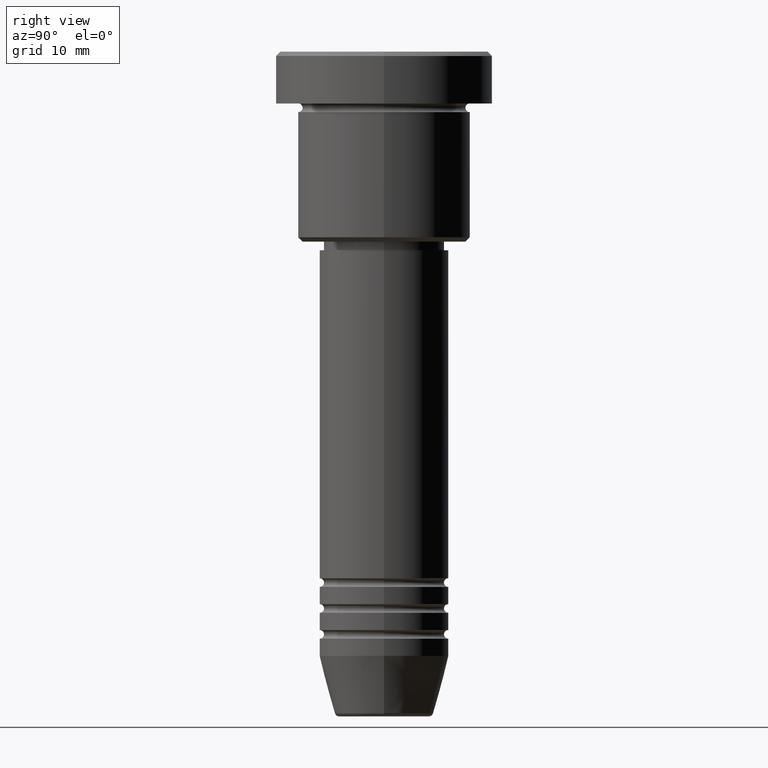
[diagram: clean part render]
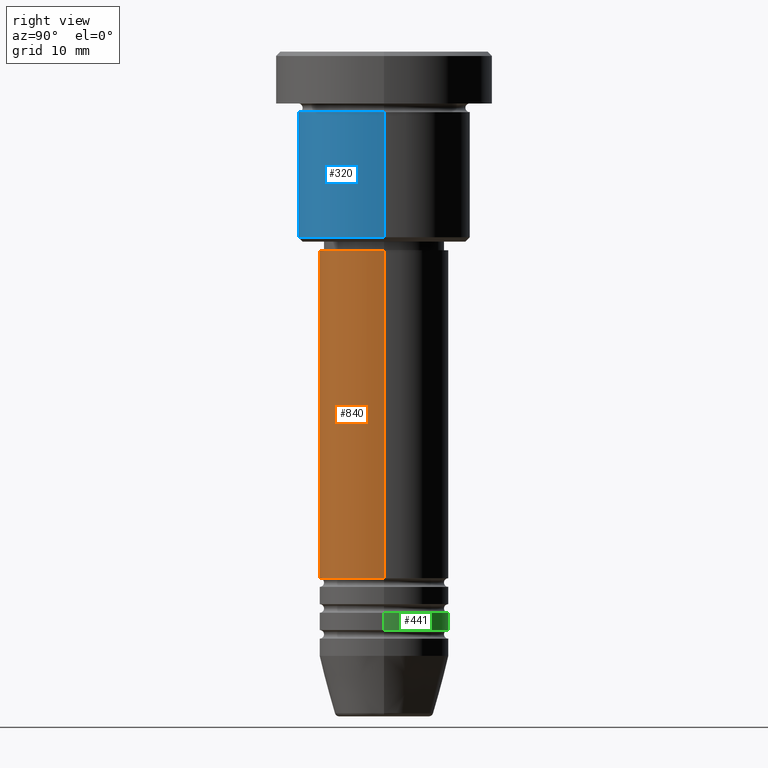
[diagram: same view with three faces highlighted in distinct colors, each labeled with its STEP entity id]
A machine part, right view with three faces highlighted in distinct colors.
Their STEP definitions:

[orange] entity #840 — the highlighted cylindrical surface (partial cylindrical patch) has radius 7.5 mm, axis along (-0, -0, 1).
#5 = DIRECTION ( 'NONE',  ( 1.000000000000000000, 0.000000000000000000, 0.000000000000000000 ) ) ;
#66 = VECTOR ( 'NONE', #909, 1000.000000000000000 ) ;
#88 = EDGE_CURVE ( 'NONE', #457, #121, #331, .T. ) ;
#102 = DIRECTION ( 'NONE',  ( 1.000000000000000000, 0.000000000000000000, 0.000000000000000000 ) ) ;
#121 = VERTEX_POINT ( 'NONE', #159 ) ;
#124 = FACE_OUTER_BOUND ( 'NONE', #1170, .T. ) ;
#159 = CARTESIAN_POINT ( 'NONE',  ( -7.500000000000000000, 9.184850993605147944E-16, -23.00000000000000711 ) ) ;
#240 = CARTESIAN_POINT ( 'NONE',  ( 7.500000000000000000, 0.000000000000000000, -60.99999999999998579 ) ) ;
#258 = DIRECTION ( 'NONE',  ( -0.000000000000000000, -0.000000000000000000, 1.000000000000000000 ) ) ;
#268 = CARTESIAN_POINT ( 'NONE',  ( 7.500000000000000000, 0.000000000000000000, 0.000000000000000000 ) ) ;
#280 = EDGE_CURVE ( 'NONE', #457, #600, #443, .T. ) ;
#292 = CARTESIAN_POINT ( 'NONE',  ( 0.000000000000000000, 0.000000000000000000, 0.000000000000000000 ) ) ;
#296 = CYLINDRICAL_SURFACE ( 'NONE', #1142, 7.500000000000000000 ) ;
#331 = LINE ( 'NONE', #963, #653 ) ;
#357 = CIRCLE ( 'NONE', #1144, 7.500000000000000000 ) ;
#379 = CARTESIAN_POINT ( 'NONE',  ( 7.500000000000000000, 0.000000000000000000, -23.00000000000000711 ) ) ;
#442 = LINE ( 'NONE', #268, #66 ) ;
#443 = CIRCLE ( 'NONE', #856, 7.500000000000000000 ) ;
#457 = VERTEX_POINT ( 'NONE', #757 ) ;
#580 = DIRECTION ( 'NONE',  ( 1.000000000000000000, 0.000000000000000000, 0.000000000000000000 ) ) ;
#600 = VERTEX_POINT ( 'NONE', #240 ) ;
#653 = VECTOR ( 'NONE', #258, 1000.000000000000000 ) ;
#699 = ORIENTED_EDGE ( 'NONE', *, *, #88, .F. ) ;
#740 = DIRECTION ( 'NONE',  ( -0.000000000000000000, -0.000000000000000000, 1.000000000000000000 ) ) ;
#757 = CARTESIAN_POINT ( 'NONE',  ( -7.500000000000000000, 9.184850993605147944E-16, -60.99999999999998579 ) ) ;
#783 = EDGE_CURVE ( 'NONE', #600, #826, #442, .T. ) ;
#812 = DIRECTION ( 'NONE',  ( -0.000000000000000000, -0.000000000000000000, 1.000000000000000000 ) ) ;
#815 = CARTESIAN_POINT ( 'NONE',  ( 0.000000000000000000, 0.000000000000000000, -23.00000000000000711 ) ) ;
#826 = VERTEX_POINT ( 'NONE', #379 ) ;
#840 = ADVANCED_FACE ( 'NONE', ( #124 ), #296, .T. ) ;
#856 = AXIS2_PLACEMENT_3D ( 'NONE', #1014, #812, #102 ) ;
#889 = ORIENTED_EDGE ( 'NONE', *, *, #280, .T. ) ;
#896 = DIRECTION ( 'NONE',  ( -0.000000000000000000, -0.000000000000000000, 1.000000000000000000 ) ) ;
#909 = DIRECTION ( 'NONE',  ( -0.000000000000000000, -0.000000000000000000, 1.000000000000000000 ) ) ;
#963 = CARTESIAN_POINT ( 'NONE',  ( -7.500000000000000000, 9.184850993605147944E-16, 0.000000000000000000 ) ) ;
#1014 = CARTESIAN_POINT ( 'NONE',  ( 0.000000000000000000, 0.000000000000000000, -60.99999999999998579 ) ) ;
#1064 = ORIENTED_EDGE ( 'NONE', *, *, #1120, .F. ) ;
#1120 = EDGE_CURVE ( 'NONE', #121, #826, #357, .T. ) ;
#1142 = AXIS2_PLACEMENT_3D ( 'NONE', #292, #740, #580 ) ;
#1144 = AXIS2_PLACEMENT_3D ( 'NONE', #815, #896, #5 ) ;
#1146 = ORIENTED_EDGE ( 'NONE', *, *, #783, .T. ) ;
#1170 = EDGE_LOOP ( 'NONE', ( #699, #889, #1146, #1064 ) ) ;

[blue] entity #320 — the highlighted cylindrical surface (partial cylindrical patch) has radius 10 mm, axis along (-0, -0, 1).
#52 = VECTOR ( 'NONE', #1062, 1000.000000000000000 ) ;
#90 = DIRECTION ( 'NONE',  ( 1.000000000000000000, 0.000000000000000000, 0.000000000000000000 ) ) ;
#94 = CARTESIAN_POINT ( 'NONE',  ( -10.00000000000000000, 1.224646799147353256E-15, -21.50000000000000000 ) ) ;
#96 = EDGE_CURVE ( 'NONE', #735, #393, #1110, .T. ) ;
#116 = AXIS2_PLACEMENT_3D ( 'NONE', #1101, #535, #90 ) ;
#152 = ORIENTED_EDGE ( 'NONE', *, *, #969, .F. ) ;
#164 = CARTESIAN_POINT ( 'NONE',  ( 0.000000000000000000, 0.000000000000000000, -21.50000000000000000 ) ) ;
#243 = LINE ( 'NONE', #698, #797 ) ;
#320 = ADVANCED_FACE ( 'NONE', ( #900 ), #362, .T. ) ;
#362 = CYLINDRICAL_SURFACE ( 'NONE', #116, 10.00000000000000000 ) ;
#366 = AXIS2_PLACEMENT_3D ( 'NONE', #881, #793, #1070 ) ;
#393 = VERTEX_POINT ( 'NONE', #585 ) ;
#501 = ORIENTED_EDGE ( 'NONE', *, *, #632, .F. ) ;
#535 = DIRECTION ( 'NONE',  ( -0.000000000000000000, -0.000000000000000000, 1.000000000000000000 ) ) ;
#560 = EDGE_CURVE ( 'NONE', #393, #1016, #243, .T. ) ;
#585 = CARTESIAN_POINT ( 'NONE',  ( 10.00000000000000000, 0.000000000000000000, -21.50000000000000000 ) ) ;
#632 = EDGE_CURVE ( 'NONE', #870, #1016, #799, .T. ) ;
#673 = ORIENTED_EDGE ( 'NONE', *, *, #96, .T. ) ;
#695 = DIRECTION ( 'NONE',  ( -0.000000000000000000, -0.000000000000000000, 1.000000000000000000 ) ) ;
#698 = CARTESIAN_POINT ( 'NONE',  ( 10.00000000000000000, 0.000000000000000000, 0.000000000000000000 ) ) ;
#735 = VERTEX_POINT ( 'NONE', #94 ) ;
#781 = CARTESIAN_POINT ( 'NONE',  ( -10.00000000000000000, 1.224646799147353256E-15, 0.000000000000000000 ) ) ;
#793 = DIRECTION ( 'NONE',  ( -0.000000000000000000, -0.000000000000000000, 1.000000000000000000 ) ) ;
#797 = VECTOR ( 'NONE', #1045, 1000.000000000000000 ) ;
#799 = CIRCLE ( 'NONE', #366, 10.00000000000000000 ) ;
#836 = AXIS2_PLACEMENT_3D ( 'NONE', #164, #695, #1161 ) ;
#841 = LINE ( 'NONE', #781, #52 ) ;
#870 = VERTEX_POINT ( 'NONE', #914 ) ;
#881 = CARTESIAN_POINT ( 'NONE',  ( 0.000000000000000000, 0.000000000000000000, -6.999999999999996447 ) ) ;
#900 = FACE_OUTER_BOUND ( 'NONE', #945, .T. ) ;
#914 = CARTESIAN_POINT ( 'NONE',  ( -10.00000000000000000, 1.224646799147353256E-15, -6.999999999999996447 ) ) ;
#945 = EDGE_LOOP ( 'NONE', ( #152, #673, #986, #501 ) ) ;
#969 = EDGE_CURVE ( 'NONE', #735, #870, #841, .T. ) ;
#986 = ORIENTED_EDGE ( 'NONE', *, *, #560, .T. ) ;
#1016 = VERTEX_POINT ( 'NONE', #1154 ) ;
#1045 = DIRECTION ( 'NONE',  ( -0.000000000000000000, -0.000000000000000000, 1.000000000000000000 ) ) ;
#1062 = DIRECTION ( 'NONE',  ( -0.000000000000000000, -0.000000000000000000, 1.000000000000000000 ) ) ;
#1070 = DIRECTION ( 'NONE',  ( 1.000000000000000000, 0.000000000000000000, 0.000000000000000000 ) ) ;
#1101 = CARTESIAN_POINT ( 'NONE',  ( 0.000000000000000000, 0.000000000000000000, 0.000000000000000000 ) ) ;
#1110 = CIRCLE ( 'NONE', #836, 10.00000000000000000 ) ;
#1154 = CARTESIAN_POINT ( 'NONE',  ( 10.00000000000000000, 0.000000000000000000, -6.999999999999996447 ) ) ;
#1161 = DIRECTION ( 'NONE',  ( -1.000000000000000000, 0.000000000000000000, 0.000000000000000000 ) ) ;

[green] entity #441 — the highlighted cylindrical surface (partial cylindrical patch) has radius 7.5 mm, axis along (-0, -0, 1).
#10 = DIRECTION ( 'NONE',  ( 1.000000000000000000, 0.000000000000000000, 0.000000000000000000 ) ) ;
#108 = VECTOR ( 'NONE', #1183, 1000.000000000000000 ) ;
#119 = CARTESIAN_POINT ( 'NONE',  ( 0.000000000000000000, 0.000000000000000000, 0.000000000000000000 ) ) ;
#125 = DIRECTION ( 'NONE',  ( -0.000000000000000000, -0.000000000000000000, 1.000000000000000000 ) ) ;
#145 = ORIENTED_EDGE ( 'NONE', *, *, #708, .T. ) ;
#162 = CARTESIAN_POINT ( 'NONE',  ( 7.500000000000000000, 0.000000000000000000, -64.99999999999998579 ) ) ;
#168 = LINE ( 'NONE', #811, #108 ) ;
#213 = DIRECTION ( 'NONE',  ( 1.000000000000000000, 0.000000000000000000, 0.000000000000000000 ) ) ;
#257 = CARTESIAN_POINT ( 'NONE',  ( 0.000000000000000000, 0.000000000000000000, -66.99999999999998579 ) ) ;
#314 = VERTEX_POINT ( 'NONE', #643 ) ;
#326 = ORIENTED_EDGE ( 'NONE', *, *, #932, .F. ) ;
#349 = ORIENTED_EDGE ( 'NONE', *, *, #803, .T. ) ;
#403 = AXIS2_PLACEMENT_3D ( 'NONE', #496, #670, #213 ) ;
#410 = EDGE_CURVE ( 'NONE', #1038, #314, #927, .T. ) ;
#441 = ADVANCED_FACE ( 'NONE', ( #753 ), #928, .T. ) ;
#451 = EDGE_LOOP ( 'NONE', ( #145, #349, #525, #326 ) ) ;
#496 = CARTESIAN_POINT ( 'NONE',  ( 0.000000000000000000, 0.000000000000000000, -64.99999999999998579 ) ) ;
#525 = ORIENTED_EDGE ( 'NONE', *, *, #410, .F. ) ;
#550 = AXIS2_PLACEMENT_3D ( 'NONE', #257, #551, #10 ) ;
#551 = DIRECTION ( 'NONE',  ( -0.000000000000000000, -0.000000000000000000, 1.000000000000000000 ) ) ;
#584 = CARTESIAN_POINT ( 'NONE',  ( 7.500000000000000000, 0.000000000000000000, 0.000000000000000000 ) ) ;
#627 = CARTESIAN_POINT ( 'NONE',  ( 7.500000000000000000, 0.000000000000000000, -66.99999999999998579 ) ) ;
#642 = CARTESIAN_POINT ( 'NONE',  ( -7.500000000000000000, 9.184850993605147944E-16, -66.99999999999998579 ) ) ;
#643 = CARTESIAN_POINT ( 'NONE',  ( -7.500000000000000000, 9.184850993605147944E-16, -64.99999999999998579 ) ) ;
#667 = VERTEX_POINT ( 'NONE', #642 ) ;
#670 = DIRECTION ( 'NONE',  ( -0.000000000000000000, -0.000000000000000000, 1.000000000000000000 ) ) ;
#708 = EDGE_CURVE ( 'NONE', #787, #667, #1122, .T. ) ;
#753 = FACE_OUTER_BOUND ( 'NONE', #451, .T. ) ;
#787 = VERTEX_POINT ( 'NONE', #627 ) ;
#803 = EDGE_CURVE ( 'NONE', #667, #314, #168, .T. ) ;
#811 = CARTESIAN_POINT ( 'NONE',  ( -7.500000000000000000, 9.184850993605147944E-16, 0.000000000000000000 ) ) ;
#927 = CIRCLE ( 'NONE', #403, 7.500000000000000000 ) ;
#928 = CYLINDRICAL_SURFACE ( 'NONE', #1169, 7.500000000000000000 ) ;
#932 = EDGE_CURVE ( 'NONE', #787, #1038, #1114, .T. ) ;
#1004 = VECTOR ( 'NONE', #1013, 1000.000000000000000 ) ;
#1013 = DIRECTION ( 'NONE',  ( -0.000000000000000000, -0.000000000000000000, 1.000000000000000000 ) ) ;
#1038 = VERTEX_POINT ( 'NONE', #162 ) ;
#1114 = LINE ( 'NONE', #584, #1004 ) ;
#1122 = CIRCLE ( 'NONE', #550, 7.500000000000000000 ) ;
#1137 = DIRECTION ( 'NONE',  ( 1.000000000000000000, 0.000000000000000000, 0.000000000000000000 ) ) ;
#1169 = AXIS2_PLACEMENT_3D ( 'NONE', #119, #125, #1137 ) ;
#1183 = DIRECTION ( 'NONE',  ( -0.000000000000000000, -0.000000000000000000, 1.000000000000000000 ) ) ;